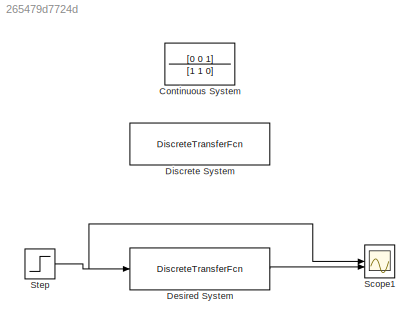
MODEL slx_265479d7724d
KIND model
CONFIG AbsTol = auto
CONFIG EnableMultiTasking = off
CONFIG FixedStep = auto
CONFIG MaxStep = auto
CONFIG MinStep = auto
CONFIG RelTol = 1e-3
CONFIG SampleTimeConstraint = Unconstrained
CONFIG SolverName = VariableStepAuto
CONFIG StartTime = 0.0
CONFIG StopTime = 10.0
BLOCK [TransferFcn] Continuous System
  Denominator = [1 1 0]
  Numerator = [0 0 1]
BLOCK [DiscreteTransferFcn] Desired System
  Denominator = [1 -1.3205 0.4966]
  InputPortMap = u0
  Numerator = [0.1761 0]
  SampleTime = 0.5
BLOCK [DiscreteTransferFcn] Discrete System
  Denominator = [1 -1.6065 0.6065]
  InputPortMap = u0
  Numerator = [0 0.1065 0.0902]
  SampleTime = 0.5
BLOCK [Scope] Scope1
  Floating = off
  NumInputPorts = 2
  ScopeSpecificationString = Simulink.scopes.TimeScopeBlockCfg('CurrentConfiguration', extmgr.ConfigurationSet(extmgr.Configuration('Core','General UI',true),extmgr.Configuration('Core','Source UI',true),extmgr.Configuration('Sources','WiredSimulink',true,'DataLoggingVariableName','ScopeData1'),extmgr.Configuration('Visuals','Time Domain',true,'SerializedDisplays',{struct('MinYLimReal','-0.13088','MaxYLimReal','1.17788','YLab...<+1380ch>
BLOCK [Step] Step
  SampleTime = 0
LINE Desired System:1 -> Scope1:2
NET Step:1 -> Desired System:1, Scope1:1
note: NET lines group one-source signal fan-out (src -> all destinations, sorted); 1:1 wires keep LINE
